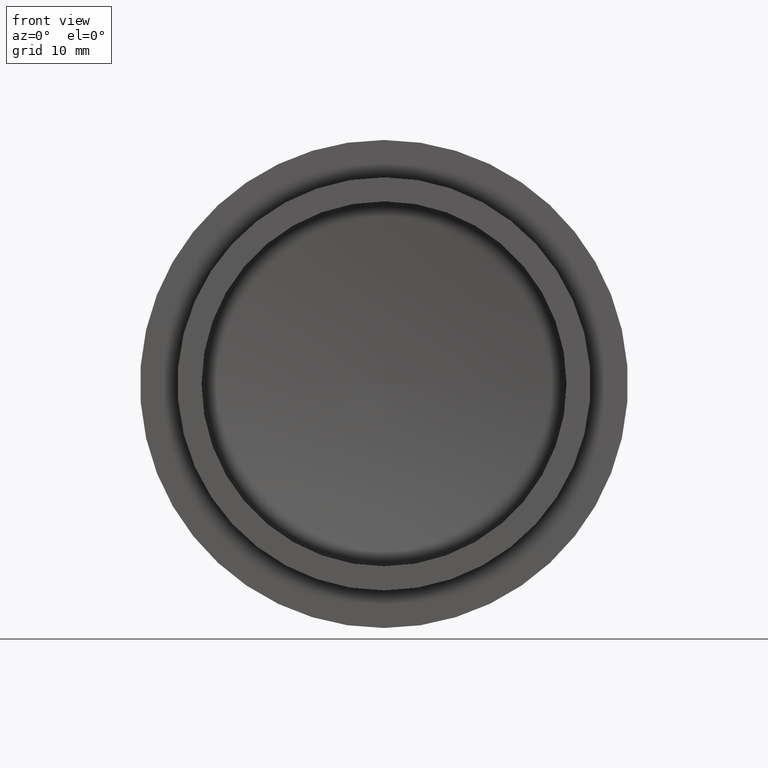
[diagram: clean part render]
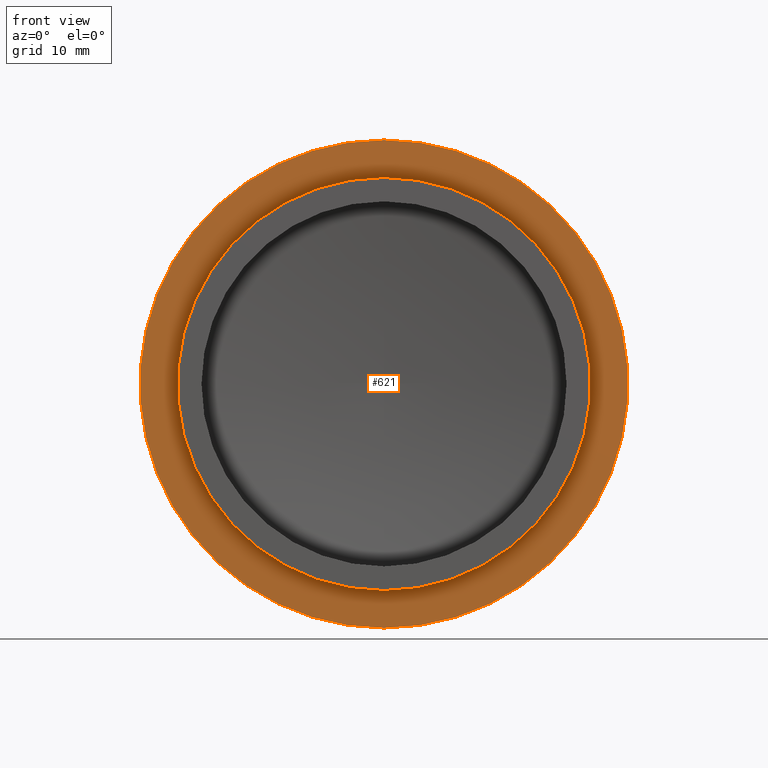
[diagram: same view with one face highlighted and labeled with its STEP entity id]
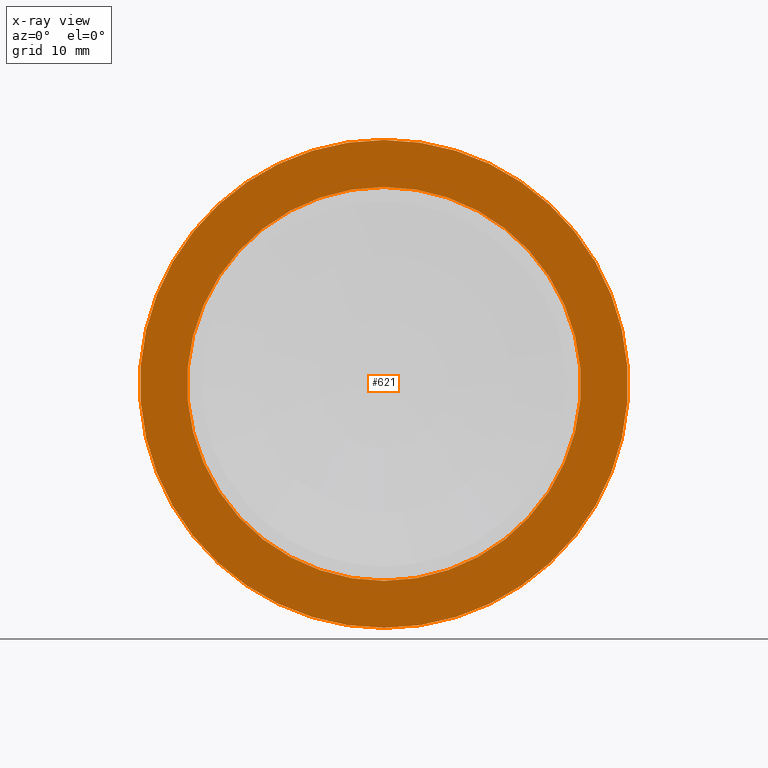
[diagram: x-ray of the same camera — body ghosted, the highlighted face saturated]
A machine part, front view. The second image highlights one B-rep face of the part: STEP entity #621.
The next image is the same camera in x-ray: the body ghosted, the highlighted face saturated — about 0% of this face is hidden behind the body in this view.
In plain terms, the highlighted planar face has unit normal (0, -1, 0).
Its self-contained STEP definition (entity closure, byte-faithful):
#12 = AXIS2_PLACEMENT_3D ( 'NONE', #1100, #494, #176 ) ;
#13 = CIRCLE ( 'NONE', #479, 25.39999999999999858 ) ;
#45 = VERTEX_POINT ( 'NONE', #249 ) ;
#57 = ORIENTED_EDGE ( 'NONE', *, *, #603, .F. ) ;
#58 = DIRECTION ( 'NONE',  ( 0.000000000000000000, -1.000000000000000000, 0.000000000000000000 ) ) ;
#85 = DIRECTION ( 'NONE',  ( 0.000000000000000000, -1.000000000000000000, 0.000000000000000000 ) ) ;
#91 = DIRECTION ( 'NONE',  ( 0.000000000000000000, 0.000000000000000000, -1.000000000000000000 ) ) ;
#157 = CARTESIAN_POINT ( 'NONE',  ( -8.905217641199635992, -24.96199424963321079, 26.65036394347448123 ) ) ;
#176 = DIRECTION ( 'NONE',  ( 0.000000000000000000, 0.000000000000000000, -1.000000000000000000 ) ) ;
#249 = CARTESIAN_POINT ( 'NONE',  ( -8.905217641199635992, -24.96199424963321079, 1.250363943474483541 ) ) ;
#259 = CARTESIAN_POINT ( 'NONE',  ( -8.905217641199635992, -24.96199424963321079, 26.65036394347448123 ) ) ;
#284 = FACE_BOUND ( 'NONE', #944, .T. ) ;
#369 = AXIS2_PLACEMENT_3D ( 'NONE', #259, #85, #91 ) ;
#379 = ORIENTED_EDGE ( 'NONE', *, *, #447, .T. ) ;
#400 = DIRECTION ( 'NONE',  ( 0.000000000000000000, 0.000000000000000000, -1.000000000000000000 ) ) ;
#407 = EDGE_CURVE ( 'NONE', #1160, #741, #1024, .T. ) ;
#413 = CARTESIAN_POINT ( 'NONE',  ( -8.905217641199635992, -24.96199424963321079, 26.65036394347448123 ) ) ;
#447 = EDGE_CURVE ( 'NONE', #1265, #45, #13, .T. ) ;
#456 = AXIS2_PLACEMENT_3D ( 'NONE', #628, #1313, #400 ) ;
#479 = AXIS2_PLACEMENT_3D ( 'NONE', #413, #722, #746 ) ;
#488 = FACE_OUTER_BOUND ( 'NONE', #970, .T. ) ;
#494 = DIRECTION ( 'NONE',  ( 0.000000000000000000, -1.000000000000000000, 0.000000000000000000 ) ) ;
#575 = EDGE_CURVE ( 'NONE', #45, #1265, #1180, .T. ) ;
#577 = CARTESIAN_POINT ( 'NONE',  ( -8.905217641199634215, -24.96199424963321079, 47.15036394347448123 ) ) ;
#603 = EDGE_CURVE ( 'NONE', #741, #1160, #935, .T. ) ;
#621 = ADVANCED_FACE ( 'NONE', ( #488, #284 ), #889, .T. ) ;
#628 = CARTESIAN_POINT ( 'NONE',  ( -8.905217641199635992, -24.96199424963321079, 26.65036394347448123 ) ) ;
#709 = CARTESIAN_POINT ( 'NONE',  ( -8.905217641199632439, -24.96199424963321079, 52.05036394347447981 ) ) ;
#722 = DIRECTION ( 'NONE',  ( 0.000000000000000000, -1.000000000000000000, 0.000000000000000000 ) ) ;
#741 = VERTEX_POINT ( 'NONE', #1203 ) ;
#746 = DIRECTION ( 'NONE',  ( 0.000000000000000000, 0.000000000000000000, -1.000000000000000000 ) ) ;
#889 = PLANE ( 'NONE',  #12 ) ;
#935 = CIRCLE ( 'NONE', #369, 20.50000000000000000 ) ;
#938 = ORIENTED_EDGE ( 'NONE', *, *, #575, .T. ) ;
#944 = EDGE_LOOP ( 'NONE', ( #57, #1143 ) ) ;
#970 = EDGE_LOOP ( 'NONE', ( #938, #379 ) ) ;
#1024 = CIRCLE ( 'NONE', #456, 20.50000000000000000 ) ;
#1100 = CARTESIAN_POINT ( 'NONE',  ( 11.59478235880036401, -24.96199424963321079, 26.65036394347448123 ) ) ;
#1116 = AXIS2_PLACEMENT_3D ( 'NONE', #157, #58, #1247 ) ;
#1143 = ORIENTED_EDGE ( 'NONE', *, *, #407, .F. ) ;
#1160 = VERTEX_POINT ( 'NONE', #577 ) ;
#1180 = CIRCLE ( 'NONE', #1116, 25.39999999999999858 ) ;
#1203 = CARTESIAN_POINT ( 'NONE',  ( -8.905217641199635992, -24.96199424963321079, 6.150363943474481232 ) ) ;
#1247 = DIRECTION ( 'NONE',  ( 0.000000000000000000, 0.000000000000000000, -1.000000000000000000 ) ) ;
#1265 = VERTEX_POINT ( 'NONE', #709 ) ;
#1313 = DIRECTION ( 'NONE',  ( 0.000000000000000000, -1.000000000000000000, 0.000000000000000000 ) ) ;